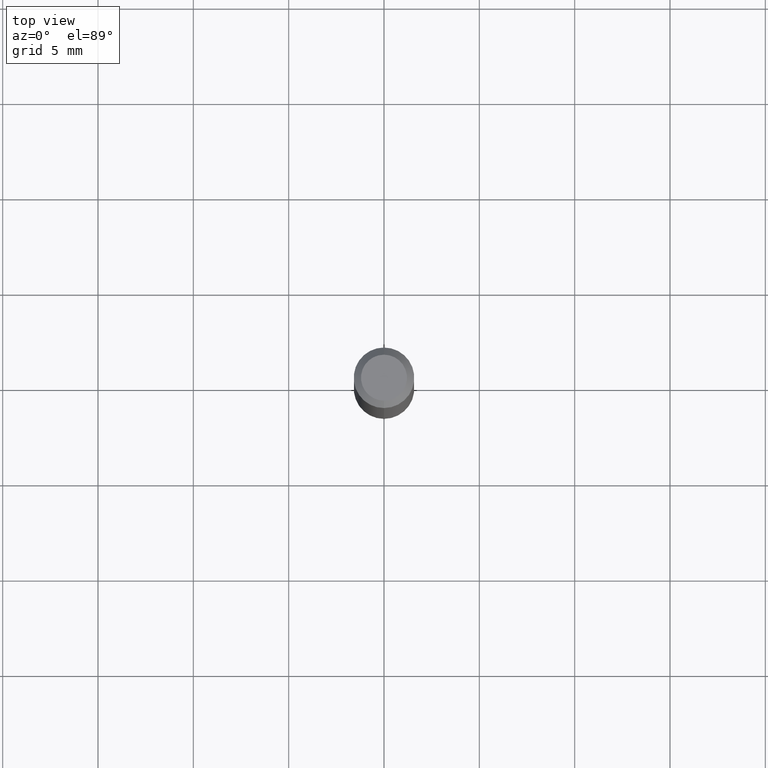
[diagram: clean part render]
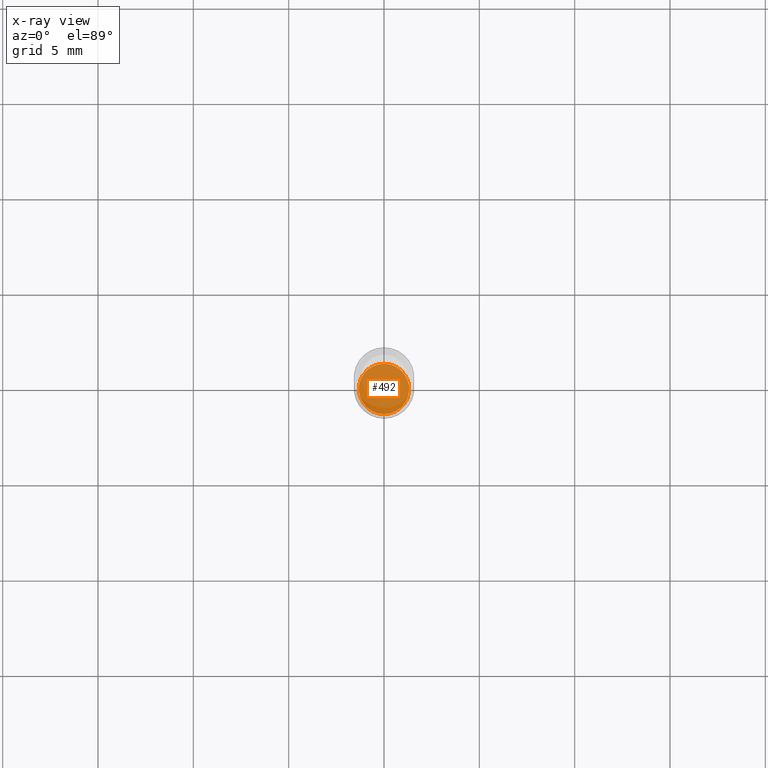
[diagram: x-ray — body ghosted, one internal face saturated and labeled with its STEP entity id]
A machine part, top view, then the same camera in x-ray: the body is ghosted and one INTERNAL B-rep face — a face not visible from any outside direction — is saturated and labeled: STEP entity #492.
In plain terms, the highlighted planar face has unit normal (-0, 0, 1).
Its self-contained STEP definition (entity closure, byte-faithful):
#2 = DIRECTION ( 'NONE',  ( -6.982962677686265922E-15, -1.000000000000000000, 5.253553833969728372E-15 ) ) ;
#19 = EDGE_LOOP ( 'NONE', ( #379, #172 ) ) ;
#39 = DIRECTION ( 'NONE',  ( -6.982962677686265922E-15, -1.000000000000000000, 5.253553833969728372E-15 ) ) ;
#48 = CIRCLE ( 'NONE', #445, 0.05200000000000008782 ) ;
#78 = DIRECTION ( 'NONE',  ( -2.445587183038990238E-29, 3.491311816450834712E-15, 1.000000000000000000 ) ) ;
#79 = CIRCLE ( 'NONE', #340, 0.05200000000000008782 ) ;
#118 = CARTESIAN_POINT ( 'NONE',  ( 3.281977999638324867E-29, -4.685340457677020428E-15, -1.342000000000000082 ) ) ;
#134 = EDGE_CURVE ( 'NONE', #326, #285, #79, .T. ) ;
#160 = PLANE ( 'NONE',  #242 ) ;
#172 = ORIENTED_EDGE ( 'NONE', *, *, #465, .F. ) ;
#233 = CARTESIAN_POINT ( 'NONE',  ( 3.281977999638324867E-29, -4.685340457677020428E-15, -1.342000000000000082 ) ) ;
#242 = AXIS2_PLACEMENT_3D ( 'NONE', #233, #78, #478 ) ;
#248 = CARTESIAN_POINT ( 'NONE',  ( -3.631140592396536617E-16, -0.05200000000000477157, -1.341999999999999860 ) ) ;
#276 = DIRECTION ( 'NONE',  ( -2.445587183038990238E-29, 3.491311816450835107E-15, 1.000000000000000000 ) ) ;
#278 = FACE_OUTER_BOUND ( 'NONE', #19, .T. ) ;
#285 = VERTEX_POINT ( 'NONE', #301 ) ;
#301 = CARTESIAN_POINT ( 'NONE',  ( 3.712585794346857104E-16, 0.05199999999999539713, -1.342000000000000304 ) ) ;
#326 = VERTEX_POINT ( 'NONE', #248 ) ;
#340 = AXIS2_PLACEMENT_3D ( 'NONE', #476, #434, #2 ) ;
#379 = ORIENTED_EDGE ( 'NONE', *, *, #134, .F. ) ;
#434 = DIRECTION ( 'NONE',  ( -2.445587183038990238E-29, 3.491311816450835107E-15, 1.000000000000000000 ) ) ;
#445 = AXIS2_PLACEMENT_3D ( 'NONE', #118, #276, #39 ) ;
#465 = EDGE_CURVE ( 'NONE', #285, #326, #48, .T. ) ;
#476 = CARTESIAN_POINT ( 'NONE',  ( 3.281977999638324867E-29, -4.685340457677020428E-15, -1.342000000000000082 ) ) ;
#478 = DIRECTION ( 'NONE',  ( -6.982962677686265922E-15, -1.000000000000000000, 3.491311816450834712E-15 ) ) ;
#492 = ADVANCED_FACE ( 'NONE', ( #278 ), #160, .F. ) ;